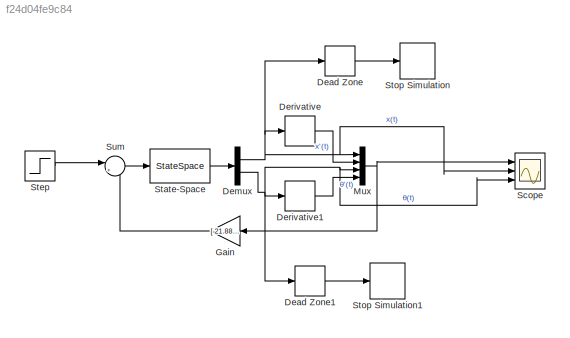
MODEL slx_f24d04fe9c84
KIND model
CONFIG AbsTol = auto
CONFIG EnableMultiTasking = off
CONFIG FixedStep = auto
CONFIG MaxStep = auto
CONFIG MinStep = auto
CONFIG RelTol = 1e-3
CONFIG SampleTimeConstraint = Unconstrained
CONFIG Solver = VariableStepAuto
CONFIG SolverName = VariableStepAuto
CONFIG StartTime = 0.0
CONFIG StopTime = 0.3
BLOCK [DeadZone] Dead Zone
BLOCK [DeadZone] Dead Zone1
  LowerValue = -0.1
  UpperValue = 0.1
BLOCK [Demux] Demux
  DisplayOption = bar
  Outputs = 2
  Ports = [1, 2]
BLOCK [Derivative] Derivative
BLOCK [Derivative] Derivative1
BLOCK [Gain] Gain
  Gain = [-21.8832 -12.4754 -38.6159 -2.4381]
  Multiplication = Matrix(K*u) (u vector)
  OutDataTypeStr = Inherit: Inherit via internal rule
  ParamDataTypeStr = Inherit: Inherit via internal rule
  SaturateOnIntegerOverflow = off
BLOCK [Mux] Mux
  DisplayOption = bar
  Ports = [4, 1]
BLOCK [Scope] Scope
  Floating = off
  NumInputPorts = 3
  Ports = [3]
  ScopeSpecificationString = Simulink.scopes.TimeScopeBlockCfg('CurrentConfiguration', extmgr.ConfigurationSet(extmgr.Configuration('Core','General UI',true),extmgr.Configuration('Core','Source UI',true),extmgr.Configuration('Sources','WiredSimulink',true),extmgr.Configuration('Visuals','Time Domain',true,'SerializedDisplays',{struct('MinYLimReal','-2.75656','MaxYLimReal','1.41639','YLabelReal','','MinYLimMag','0.00000','MaxY...<+3418ch>
BLOCK [StateSpace] State-Space
  A = [0 1 0 0 ; 0 -14.4899 -1.9749 0 ; 0 0 0 1 ; 0 86.2495 58.3333 0]
  B = [0 ; 3.255 ; 0 ; -19.3751]
  C = [1 0 0 0 ; 0 0 1 0]
  D = [0;0]
  InitialCondition = [0 0 0.09 1]
  Ports = [1, 1]
BLOCK [Step] Step
  SampleTime = 0
BLOCK [Stop] Stop Simulation
BLOCK [Stop] Stop Simulation1
BLOCK [Sum] Sum
  IconShape = round
  InputSameDT = off
  Inputs = |+-
  OutDataTypeStr = Inherit: Inherit via internal rule
  Ports = [2, 1]
  SaturateOnIntegerOverflow = off
LINE Dead Zone1:1 -> Stop Simulation1:1
LINE Dead Zone:1 -> Stop Simulation:1
NET Demux:1 -> Dead Zone:1, Derivative:1, Mux:1, Scope:2
NET Demux:2 -> Dead Zone1:1, Derivative1:1, Mux:3, Scope:3
LINE Derivative1:1 -> Mux:4
LINE Derivative:1 -> Mux:2
LINE Gain:1 -> Sum:2
NET Mux:1 -> Gain:1, Scope:1
LINE State-Space:1 -> Demux:1
LINE Step:1 -> Sum:1
LINE Sum:1 -> State-Space:1
note: NET lines group one-source signal fan-out (src -> all destinations, sorted); 1:1 wires keep LINE
